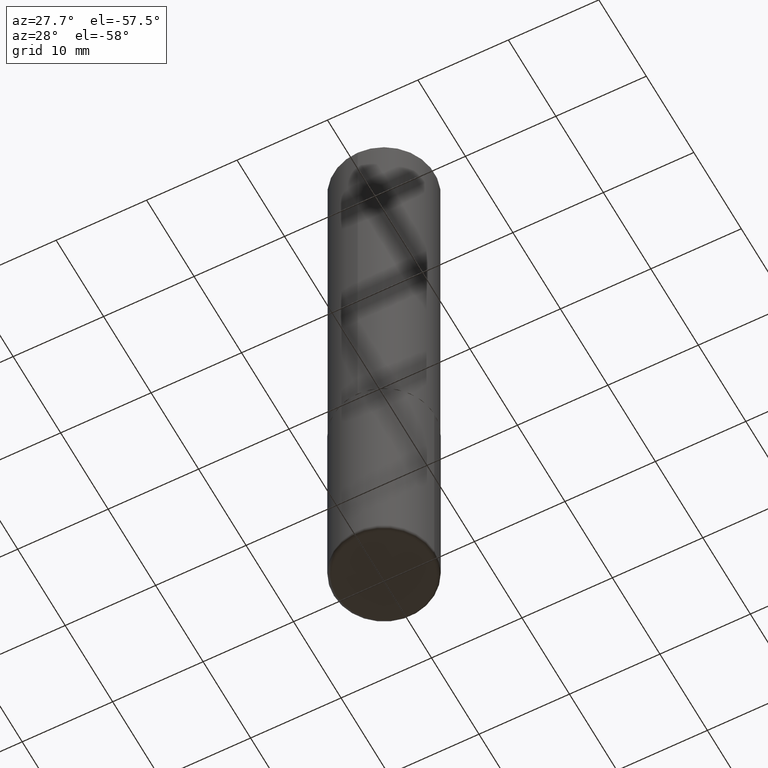
[diagram: clean part render]
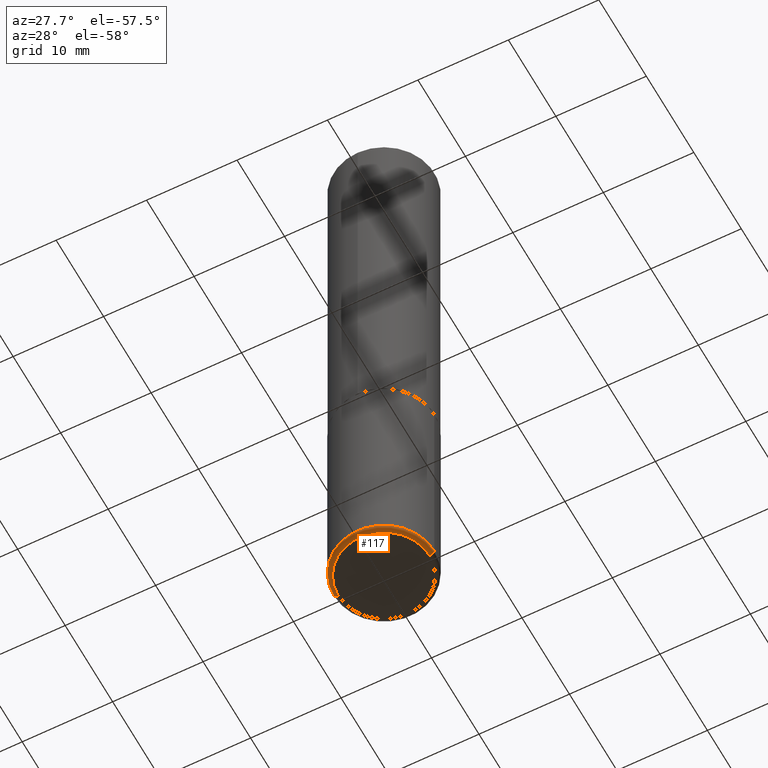
[diagram: same view with one face highlighted and labeled with its STEP entity id]
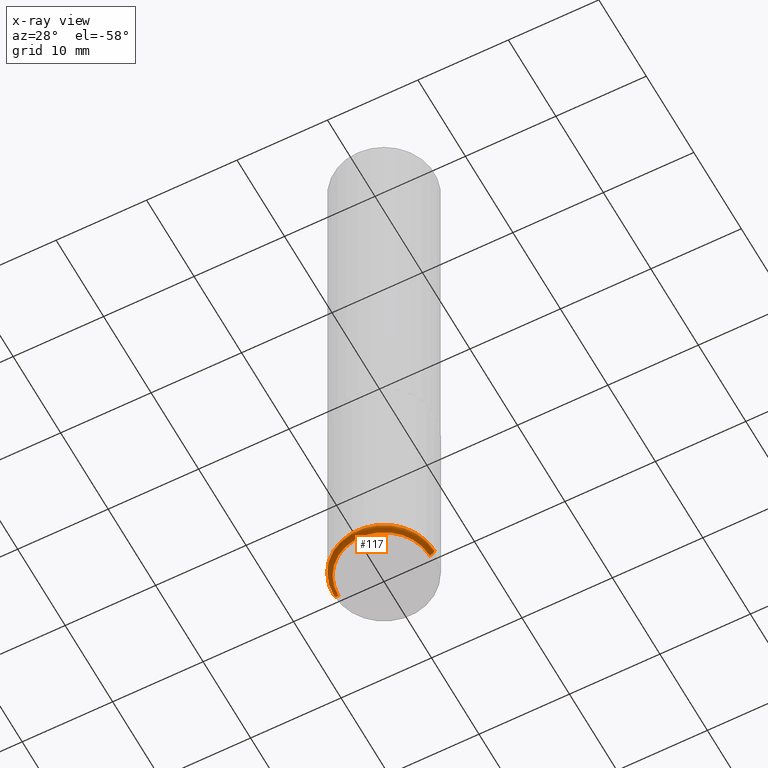
[diagram: x-ray of the same camera — body ghosted, the highlighted face saturated]
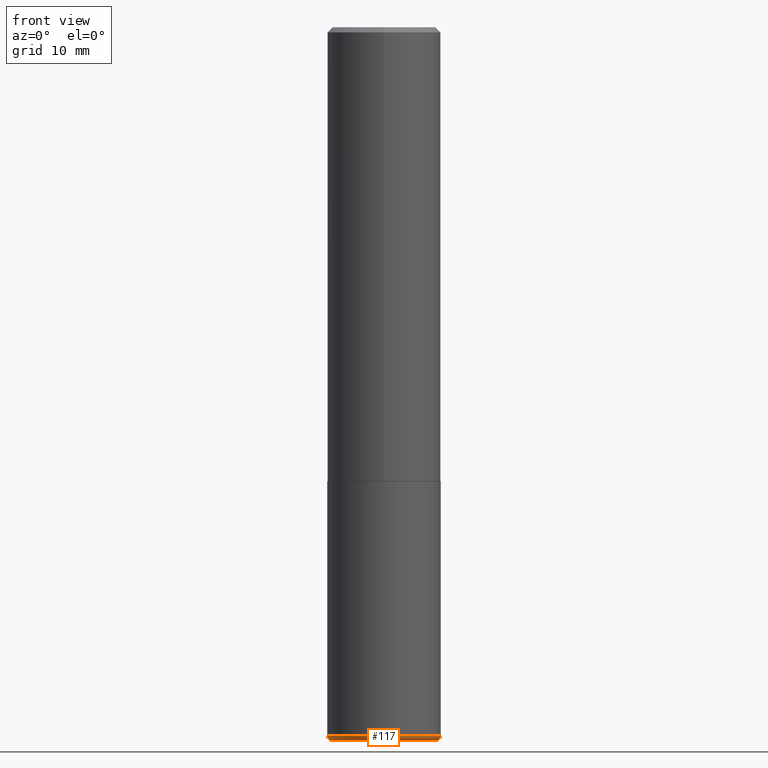
[diagram: same view with one face highlighted and labeled with its STEP entity id]
A machine part, auxiliary view. The second image highlights one B-rep face of the part: STEP entity #117.
The next image is the same camera in x-ray: the body ghosted, the highlighted face saturated — about 0% of this face is hidden behind the body in this view.
A second angle (front view) of the same face is appended — the face is thin or edge-on in the first view.
In plain terms, the highlighted toroidal blend (fillet) surface has major radius 5.0483 mm and minor (blend) radius 0.508 mm.
Its self-contained STEP definition (entity closure, byte-faithful):
#4 = CIRCLE ( 'NONE', #245, 0.2187500000000000000 ) ;
#9 = CARTESIAN_POINT ( 'NONE',  ( 0.1987500000000000100, -1.091960788723193160E-14, -2.729999999999999982 ) ) ;
#23 = CIRCLE ( 'NONE', #53, 0.1987500000000000100 ) ;
#28 = VERTEX_POINT ( 'NONE', #252 ) ;
#33 = DIRECTION ( 'NONE',  ( 7.105427357601001859E-15, 1.000000000000000000, -3.491481338843145583E-15 ) ) ;
#41 = DIRECTION ( 'NONE',  ( 1.000000000000000000, -6.982962677686265133E-15, 0.000000000000000000 ) ) ;
#45 = CIRCLE ( 'NONE', #172, 0.01999999999999988939 ) ;
#53 = AXIS2_PLACEMENT_3D ( 'NONE', #237, #203, #41 ) ;
#55 = CIRCLE ( 'NONE', #304, 0.01999999999999988939 ) ;
#68 = VERTEX_POINT ( 'NONE', #353 ) ;
#90 = CARTESIAN_POINT ( 'NONE',  ( 6.676129840885423672E-29, -9.531744055041786561E-15, -2.729999999999999982 ) ) ;
#101 = TOROIDAL_SURFACE ( 'NONE', #355, 0.1987500000000000100, 0.01999999999999988939 ) ;
#105 = ORIENTED_EDGE ( 'NONE', *, *, #148, .T. ) ;
#117 = ADVANCED_FACE ( 'NONE', ( #291 ), #101, .T. ) ;
#126 = DIRECTION ( 'NONE',  ( -2.445468806185136597E-29, 3.491481338843145583E-15, 1.000000000000000000 ) ) ;
#136 = DIRECTION ( 'NONE',  ( 1.000000000000000000, -6.982962677686274599E-15, 0.000000000000000000 ) ) ;
#145 = VERTEX_POINT ( 'NONE', #262 ) ;
#148 = EDGE_CURVE ( 'NONE', #28, #68, #23, .T. ) ;
#153 = EDGE_CURVE ( 'NONE', #68, #388, #45, .T. ) ;
#172 = AXIS2_PLACEMENT_3D ( 'NONE', #9, #275, #136 ) ;
#203 = DIRECTION ( 'NONE',  ( -2.445468806185136597E-29, 3.491481338843145583E-15, 1.000000000000000000 ) ) ;
#210 = ORIENTED_EDGE ( 'NONE', *, *, #153, .T. ) ;
#219 = DIRECTION ( 'NONE',  ( -2.445468806185136597E-29, 3.491481338843145583E-15, 1.000000000000000000 ) ) ;
#228 = CARTESIAN_POINT ( 'NONE',  ( 6.676129840885423672E-29, -9.531744055041786561E-15, -2.729999999999999982 ) ) ;
#237 = CARTESIAN_POINT ( 'NONE',  ( 6.725039217009124520E-29, -9.601573681818649859E-15, -2.750000000000000000 ) ) ;
#245 = AXIS2_PLACEMENT_3D ( 'NONE', #228, #126, #310 ) ;
#252 = CARTESIAN_POINT ( 'NONE',  ( -0.1987500000000000100, -8.083400907531010713E-15, -2.750000000000000000 ) ) ;
#262 = CARTESIAN_POINT ( 'NONE',  ( -0.2187499999999999445, -7.977431820566568982E-15, -2.729999999999999982 ) ) ;
#275 = DIRECTION ( 'NONE',  ( -6.982962677686266711E-15, -1.000000000000000000, 3.491481338843145583E-15 ) ) ;
#283 = EDGE_CURVE ( 'NONE', #145, #388, #4, .T. ) ;
#291 = FACE_OUTER_BOUND ( 'NONE', #404, .T. ) ;
#304 = AXIS2_PLACEMENT_3D ( 'NONE', #348, #33, #406 ) ;
#310 = DIRECTION ( 'NONE',  ( 1.000000000000000000, -6.982962677686262766E-15, 0.000000000000000000 ) ) ;
#311 = ORIENTED_EDGE ( 'NONE', *, *, #283, .F. ) ;
#324 = EDGE_CURVE ( 'NONE', #28, #145, #55, .T. ) ;
#348 = CARTESIAN_POINT ( 'NONE',  ( -0.1987500000000000100, -8.119540367718587568E-15, -2.729999999999999982 ) ) ;
#353 = CARTESIAN_POINT ( 'NONE',  ( 0.1987500000000000100, -1.098943751400879489E-14, -2.750000000000000000 ) ) ;
#355 = AXIS2_PLACEMENT_3D ( 'NONE', #90, #219, #370 ) ;
#370 = DIRECTION ( 'NONE',  ( 1.000000000000000000, -6.982962677686266711E-15, 4.883557194083112901E-29 ) ) ;
#388 = VERTEX_POINT ( 'NONE', #409 ) ;
#396 = ORIENTED_EDGE ( 'NONE', *, *, #324, .F. ) ;
#404 = EDGE_LOOP ( 'NONE', ( #396, #105, #210, #311 ) ) ;
#406 = DIRECTION ( 'NONE',  ( -1.000000000000000000, 7.105427357601014480E-15, 0.000000000000000000 ) ) ;
#409 = CARTESIAN_POINT ( 'NONE',  ( 0.2187499999999999445, -1.105926714078565662E-14, -2.729999999999999982 ) ) ;